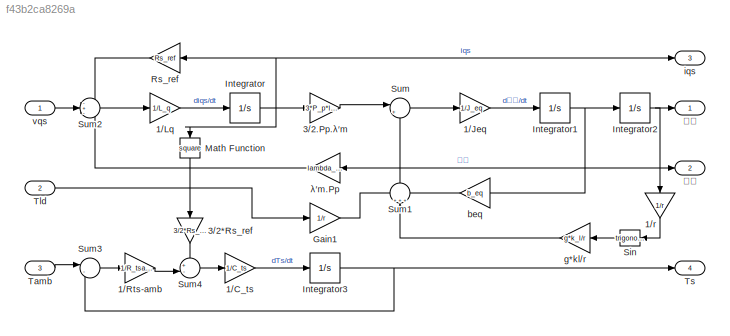
MODEL slx_f43b2ca8269a
KIND model
CONFIG AbsTol = auto
CONFIG EnableMultiTasking = off
CONFIG FixedStep = auto
CONFIG MaxStep = auto
CONFIG MinStep = auto
CONFIG RelTol = 1e-3
CONFIG SampleTimeConstraint = Unconstrained
CONFIG SolverName = VariableStepAuto
CONFIG StartTime = 0.0
CONFIG StopTime = 10.0
BLOCK [Gain] 1//C_ts
  Gain = 1/C_ts
BLOCK [Gain] 1//Jeq
  Gain = 1/J_eq
BLOCK [Gain] 1//Lq
  Gain = 1/L_q
BLOCK [Gain] 1//Rts-amb
  Gain = 1/R_tsamb
BLOCK [Gain] 1//r
  Gain = 1/r
  NameLocation = left
BLOCK [Gain] 3//2*Rs_ref
  Gain = 3/2*Rs_ref
  NameLocation = left
BLOCK [Gain] 3//2.Pp.λ′m
  Gain = 3*P_p*lambda_m/2
BLOCK [Gain] Gain1
  Gain = 1/r
BLOCK [Integrator] Integrator
BLOCK [Integrator] Integrator1
BLOCK [Integrator] Integrator2
BLOCK [Integrator] Integrator3
BLOCK [Math] Math Function
  NameLocation = left
  Operator = square
BLOCK [Gain] Rs_ref
  Gain = Rs_ref
BLOCK [Trigonometry] Sin
BLOCK [Sum] Sum
  Inputs = |+-
BLOCK [Sum] Sum1
  Inputs = +++
  NameLocation = right
BLOCK [Sum] Sum2
  Inputs = -+-
BLOCK [Sum] Sum3
  Inputs = |-+
BLOCK [Sum] Sum4
  Inputs = +-|
BLOCK [Inport] Tamb
  Port = 3
BLOCK [Inport] Tld
  Port = 2
BLOCK [Outport] Ts
  Port = 4
BLOCK [Gain] beq
  Gain = b_eq
BLOCK [Gain] g*kl//r
  Gain = g*k_l/r
BLOCK [Outport] iqs
  Port = 3
BLOCK [Inport] vqs
BLOCK [Gain] λ′m.Pp
  Gain = lambda_m*P_p
BLOCK [Outport] 𝜃𝑚
BLOCK [Outport] 𝜔𝑚
  Port = 2
LINE 1//C_ts:1 -> Integrator3:1
LINE 1//Jeq:1 -> Integrator1:1
LINE 1//Lq:1 -> Integrator:1
LINE 1//Rts-amb:1 -> Sum4:2
LINE 1//r:1 -> Sin:1
LINE 3//2*Rs_ref:1 -> Sum4:1
LINE 3//2.Pp.λ′m:1 -> Sum:1
LINE Gain1:1 -> Sum1:1
NET Integrator1:1 -> Integrator2:1, beq:1, λ′m.Pp:1, 𝜔𝑚:1
NET Integrator2:1 -> 1//r:1, 𝜃𝑚:1
NET Integrator3:1 -> Sum3:2, Ts:1
NET Integrator:1 -> 3//2.Pp.λ′m:1, Math Function:1, Rs_ref:1, iqs:1
LINE Math Function:1 -> 3//2*Rs_ref:1
LINE Rs_ref:1 -> Sum2:1
LINE Sin:1 -> g*kl//r:1
LINE Sum1:1 -> Sum:2
LINE Sum2:1 -> 1//Lq:1
LINE Sum3:1 -> 1//Rts-amb:1
LINE Sum4:1 -> 1//C_ts:1
LINE Sum:1 -> 1//Jeq:1
LINE Tamb:1 -> Sum3:1
LINE Tld:1 -> Gain1:1
LINE beq:1 -> Sum1:3
LINE g*kl//r:1 -> Sum1:2
LINE vqs:1 -> Sum2:2
LINE λ′m.Pp:1 -> Sum2:3
note: NET lines group one-source signal fan-out (src -> all destinations, sorted); 1:1 wires keep LINE
